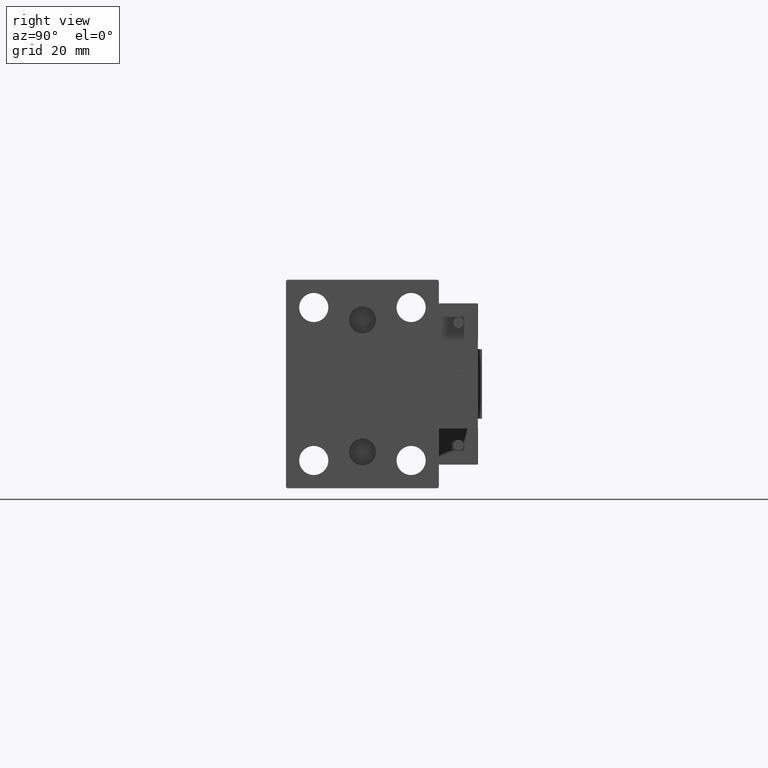
[diagram: clean part render]
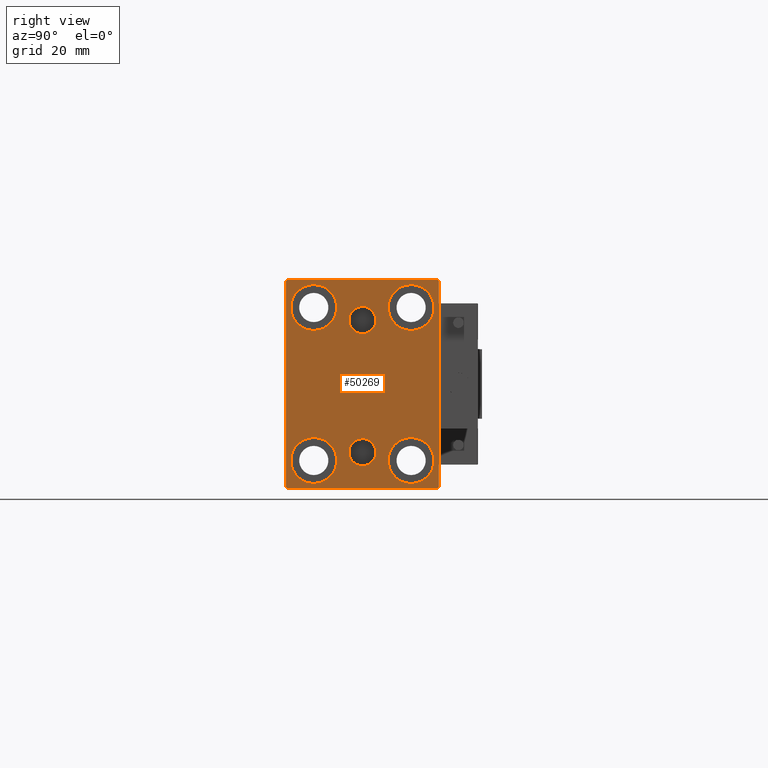
[diagram: same view with one face highlighted and labeled with its STEP entity id]
A machine part, right view. The second image highlights one B-rep face of the part: STEP entity #50269.
In plain terms, the highlighted planar face has unit normal (1, 0, 0).
Its self-contained STEP definition (entity closure, byte-faithful):
#143 = DIRECTION ( 'NONE',  ( 1.000000000000000000, 0.000000000000000000, 0.000000000000000000 ) ) ;
#337 = EDGE_CURVE ( 'NONE', #3570, #39332, #52429, .T. ) ;
#479 = EDGE_LOOP ( 'NONE', ( #51459, #25702, #19199, #50685, #47085, #43808, #20501, #22845 ) ) ;
#1545 = CIRCLE ( 'NONE', #8348, 4.859999999999999432 ) ;
#2521 = CARTESIAN_POINT ( 'NONE',  ( 115.0000000000000000, 32.24999999999981526, 32.25000000000025580 ) ) ;
#2774 = VERTEX_POINT ( 'NONE', #46201 ) ;
#3029 = CIRCLE ( 'NONE', #32802, 8.250000000000000000 ) ;
#3086 = CARTESIAN_POINT ( 'NONE',  ( 115.0000000000000000, -17.49999999999999645, 27.49999999999999645 ) ) ;
#3238 = ORIENTED_EDGE ( 'NONE', *, *, #17573, .T. ) ;
#3424 = VECTOR ( 'NONE', #13955, 1000.000000000000000 ) ;
#3570 = VERTEX_POINT ( 'NONE', #25672 ) ;
#3667 = EDGE_CURVE ( 'NONE', #32536, #51893, #18995, .T. ) ;
#4005 = CARTESIAN_POINT ( 'NONE',  ( 115.0000000000000000, 3.000384657911015074E-15, -24.49999999999999289 ) ) ;
#4092 = CARTESIAN_POINT ( 'NONE',  ( 115.0000000000000000, -3.571693674697836683E-15, 18.14000000000000767 ) ) ;
#4246 = VERTEX_POINT ( 'NONE', #17398 ) ;
#4317 = AXIS2_PLACEMENT_3D ( 'NONE', #32125, #20647, #4652 ) ;
#4515 = CARTESIAN_POINT ( 'NONE',  ( 115.0000000000000000, 3.000384657911015074E-15, -29.35999999999999233 ) ) ;
#4652 = DIRECTION ( 'NONE',  ( 0.000000000000000000, 0.000000000000000000, 1.000000000000000000 ) ) ;
#4723 = CARTESIAN_POINT ( 'NONE',  ( 115.0000000000000000, -17.50000000000000355, -27.50000000000000355 ) ) ;
#4854 = CARTESIAN_POINT ( 'NONE',  ( 115.0000000000000000, -32.25000000000038369, 32.24999999999949551 ) ) ;
#5295 = CARTESIAN_POINT ( 'NONE',  ( 115.0000000000000000, -17.49999999999999645, 27.49999999999999645 ) ) ;
#5571 = VECTOR ( 'NONE', #52169, 1000.000000000000000 ) ;
#5698 = CARTESIAN_POINT ( 'NONE',  ( 115.0000000000000000, -3.571693674697836683E-15, 23.00000000000000711 ) ) ;
#6522 = LINE ( 'NONE', #2521, #36887 ) ;
#6969 = VECTOR ( 'NONE', #34439, 1000.000000000000114 ) ;
#7470 = AXIS2_PLACEMENT_3D ( 'NONE', #4723, #44979, #20976 ) ;
#7614 = DIRECTION ( 'NONE',  ( 0.000000000000000000, 0.000000000000000000, -1.000000000000000000 ) ) ;
#7787 = DIRECTION ( 'NONE',  ( -1.000000000000000000, -0.000000000000000000, -0.000000000000000000 ) ) ;
#8205 = VERTEX_POINT ( 'NONE', #47172 ) ;
#8244 = DIRECTION ( 'NONE',  ( 0.000000000000000000, 0.000000000000000000, 1.000000000000000000 ) ) ;
#8348 = AXIS2_PLACEMENT_3D ( 'NONE', #43232, #11770, #27231 ) ;
#9048 = CIRCLE ( 'NONE', #37963, 8.249999999999992895 ) ;
#9100 = VERTEX_POINT ( 'NONE', #22664 ) ;
#9678 = CARTESIAN_POINT ( 'NONE',  ( 115.0000000000000000, 32.25000000000038369, -32.24999999999949551 ) ) ;
#10076 = CARTESIAN_POINT ( 'NONE',  ( 115.0000000000000000, 17.49999999999999645, -35.75000000000000711 ) ) ;
#10838 = EDGE_LOOP ( 'NONE', ( #24239, #32820 ) ) ;
#11474 = CIRCLE ( 'NONE', #46372, 8.250000000000000000 ) ;
#11477 = ORIENTED_EDGE ( 'NONE', *, *, #11555, .F. ) ;
#11555 = EDGE_CURVE ( 'NONE', #39890, #34088, #29112, .T. ) ;
#11622 = FACE_BOUND ( 'NONE', #12576, .T. ) ;
#11636 = CARTESIAN_POINT ( 'NONE',  ( 115.0000000000000000, 27.49999999999999645, 37.50000000000000711 ) ) ;
#11731 = VERTEX_POINT ( 'NONE', #27934 ) ;
#11770 = DIRECTION ( 'NONE',  ( 1.000000000000000000, 0.000000000000000000, 0.000000000000000000 ) ) ;
#12070 = VECTOR ( 'NONE', #41116, 1000.000000000000000 ) ;
#12121 = AXIS2_PLACEMENT_3D ( 'NONE', #4005, #20252, #32514 ) ;
#12326 = LINE ( 'NONE', #4854, #49904 ) ;
#12412 = CIRCLE ( 'NONE', #42212, 8.249999999999992895 ) ;
#12550 = EDGE_CURVE ( 'NONE', #20245, #12988, #50498, .T. ) ;
#12576 = EDGE_LOOP ( 'NONE', ( #44596, #43277 ) ) ;
#12988 = VERTEX_POINT ( 'NONE', #39968 ) ;
#13023 = CARTESIAN_POINT ( 'NONE',  ( 115.0000000000000000, -27.50000000000000355, 37.50000000000000000 ) ) ;
#13106 = DIRECTION ( 'NONE',  ( 0.000000000000000000, -0.7071067811865378028, -0.7071067811865573427 ) ) ;
#13507 = ORIENTED_EDGE ( 'NONE', *, *, #20962, .F. ) ;
#13955 = DIRECTION ( 'NONE',  ( -0.000000000000000000, 0.7071067811865378028, 0.7071067811865573427 ) ) ;
#14284 = CIRCLE ( 'NONE', #7470, 8.250000000000000000 ) ;
#14354 = CARTESIAN_POINT ( 'NONE',  ( 115.0000000000000000, 3.000384657911015074E-15, -24.49999999999999289 ) ) ;
#15753 = CIRCLE ( 'NONE', #26785, 4.859999999999999432 ) ;
#15870 = FACE_BOUND ( 'NONE', #31741, .T. ) ;
#17132 = LINE ( 'NONE', #29915, #12070 ) ;
#17398 = CARTESIAN_POINT ( 'NONE',  ( 115.0000000000000000, 27.49999999999999645, 37.00000000000001421 ) ) ;
#17402 = EDGE_LOOP ( 'NONE', ( #13507, #46964 ) ) ;
#17534 = CARTESIAN_POINT ( 'NONE',  ( 115.0000000000000000, -2.976515330312223406E-15, 27.86000000000000654 ) ) ;
#17573 = EDGE_CURVE ( 'NONE', #8205, #31195, #11474, .T. ) ;
#17832 = CIRCLE ( 'NONE', #29759, 8.249999999999992895 ) ;
#18809 = CARTESIAN_POINT ( 'NONE',  ( 115.0000000000000000, -17.49999999999999645, 19.25000000000000000 ) ) ;
#18912 = CARTESIAN_POINT ( 'NONE',  ( 115.0000000000000000, -27.00000000000000355, -37.50000000000000000 ) ) ;
#18995 = LINE ( 'NONE', #9678, #3424 ) ;
#19199 = ORIENTED_EDGE ( 'NONE', *, *, #40454, .T. ) ;
#19671 = VECTOR ( 'NONE', #21278, 1000.000000000000000 ) ;
#19869 = PLANE ( 'NONE',  #23440 ) ;
#20235 = CARTESIAN_POINT ( 'NONE',  ( 115.0000000000000000, 17.50000000000000355, 27.49999999999999645 ) ) ;
#20245 = VERTEX_POINT ( 'NONE', #10076 ) ;
#20252 = DIRECTION ( 'NONE',  ( 1.000000000000000000, 0.000000000000000000, -0.000000000000000000 ) ) ;
#20501 = ORIENTED_EDGE ( 'NONE', *, *, #41870, .T. ) ;
#20575 = EDGE_CURVE ( 'NONE', #39332, #32536, #43900, .T. ) ;
#20647 = DIRECTION ( 'NONE',  ( -1.000000000000000000, -0.000000000000000000, -0.000000000000000000 ) ) ;
#20962 = EDGE_CURVE ( 'NONE', #44570, #51787, #23409, .T. ) ;
#20976 = DIRECTION ( 'NONE',  ( 0.000000000000000000, 0.000000000000000000, 1.000000000000000000 ) ) ;
#21278 = DIRECTION ( 'NONE',  ( 0.000000000000000000, 0.000000000000000000, -1.000000000000000000 ) ) ;
#21916 = EDGE_CURVE ( 'NONE', #41916, #26218, #26128, .T. ) ;
#22664 = CARTESIAN_POINT ( 'NONE',  ( 115.0000000000000000, -17.49999999999999645, 35.74999999999999289 ) ) ;
#22679 = EDGE_CURVE ( 'NONE', #12988, #20245, #3029, .T. ) ;
#22845 = ORIENTED_EDGE ( 'NONE', *, *, #46358, .T. ) ;
#23409 = CIRCLE ( 'NONE', #42960, 4.859999999999999432 ) ;
#23440 = AXIS2_PLACEMENT_3D ( 'NONE', #44135, #143, #7614 ) ;
#23647 = CARTESIAN_POINT ( 'NONE',  ( 115.0000000000000000, -27.50000000000000355, -37.50000000000000000 ) ) ;
#23792 = EDGE_CURVE ( 'NONE', #47822, #2774, #12412, .T. ) ;
#23836 = CARTESIAN_POINT ( 'NONE',  ( 115.0000000000000000, 27.00000000000001776, -37.50000000000000000 ) ) ;
#23911 = EDGE_LOOP ( 'NONE', ( #3238, #41486 ) ) ;
#24212 = EDGE_CURVE ( 'NONE', #9100, #27567, #9048, .T. ) ;
#24239 = ORIENTED_EDGE ( 'NONE', *, *, #33171, .T. ) ;
#24504 = EDGE_CURVE ( 'NONE', #26218, #11731, #12326, .T. ) ;
#25672 = CARTESIAN_POINT ( 'NONE',  ( 115.0000000000000000, -27.50000000000000355, -37.00000000000000000 ) ) ;
#25702 = ORIENTED_EDGE ( 'NONE', *, *, #24504, .T. ) ;
#26128 = LINE ( 'NONE', #11636, #5571 ) ;
#26179 = CARTESIAN_POINT ( 'NONE',  ( 115.0000000000000000, 17.49999999999999645, -27.50000000000000355 ) ) ;
#26218 = VERTEX_POINT ( 'NONE', #51637 ) ;
#26785 = AXIS2_PLACEMENT_3D ( 'NONE', #14354, #43649, #31129 ) ;
#27231 = DIRECTION ( 'NONE',  ( 0.000000000000000000, 0.000000000000000000, -1.000000000000000000 ) ) ;
#27279 = CIRCLE ( 'NONE', #4317, 8.249999999999992895 ) ;
#27484 = EDGE_CURVE ( 'NONE', #31195, #8205, #14284, .T. ) ;
#27485 = AXIS2_PLACEMENT_3D ( 'NONE', #26179, #30684, #39467 ) ;
#27567 = VERTEX_POINT ( 'NONE', #18809 ) ;
#27628 = VECTOR ( 'NONE', #38255, 1000.000000000000000 ) ;
#27629 = CARTESIAN_POINT ( 'NONE',  ( 115.0000000000000000, -17.50000000000000355, -27.50000000000000355 ) ) ;
#27877 = FACE_OUTER_BOUND ( 'NONE', #479, .T. ) ;
#27934 = CARTESIAN_POINT ( 'NONE',  ( 115.0000000000000000, -27.50000000000000355, 37.00000000000000000 ) ) ;
#27976 = DIRECTION ( 'NONE',  ( 1.000000000000000000, 0.000000000000000000, 0.000000000000000000 ) ) ;
#29112 = CIRCLE ( 'NONE', #12121, 4.859999999999999432 ) ;
#29759 = AXIS2_PLACEMENT_3D ( 'NONE', #5295, #7787, #40294 ) ;
#29915 = CARTESIAN_POINT ( 'NONE',  ( 115.0000000000000000, 27.50000000000000355, -37.50000000000000000 ) ) ;
#30048 = EDGE_CURVE ( 'NONE', #51787, #44570, #1545, .T. ) ;
#30475 = EDGE_LOOP ( 'NONE', ( #41622, #42559 ) ) ;
#30684 = DIRECTION ( 'NONE',  ( -1.000000000000000000, -0.000000000000000000, -0.000000000000000000 ) ) ;
#30845 = DIRECTION ( 'NONE',  ( -1.000000000000000000, -0.000000000000000000, -0.000000000000000000 ) ) ;
#31129 = DIRECTION ( 'NONE',  ( 0.000000000000000000, 0.000000000000000000, 1.000000000000000000 ) ) ;
#31195 = VERTEX_POINT ( 'NONE', #33176 ) ;
#31741 = EDGE_LOOP ( 'NONE', ( #38492, #11477 ) ) ;
#32125 = CARTESIAN_POINT ( 'NONE',  ( 115.0000000000000000, 17.50000000000000355, 27.49999999999999645 ) ) ;
#32133 = FACE_BOUND ( 'NONE', #10838, .T. ) ;
#32514 = DIRECTION ( 'NONE',  ( 0.000000000000000000, 0.000000000000000000, 1.000000000000000000 ) ) ;
#32536 = VERTEX_POINT ( 'NONE', #23836 ) ;
#32802 = AXIS2_PLACEMENT_3D ( 'NONE', #43238, #36015, #47514 ) ;
#32820 = ORIENTED_EDGE ( 'NONE', *, *, #24212, .T. ) ;
#33171 = EDGE_CURVE ( 'NONE', #27567, #9100, #17832, .T. ) ;
#33176 = CARTESIAN_POINT ( 'NONE',  ( 115.0000000000000000, -17.50000000000000355, -19.25000000000000355 ) ) ;
#34088 = VERTEX_POINT ( 'NONE', #4515 ) ;
#34439 = DIRECTION ( 'NONE',  ( -0.000000000000000000, 0.7071067811865474617, -0.7071067811865474617 ) ) ;
#35550 = EDGE_CURVE ( 'NONE', #2774, #47822, #27279, .T. ) ;
#35571 = DIRECTION ( 'NONE',  ( -1.000000000000000000, -0.000000000000000000, -0.000000000000000000 ) ) ;
#35965 = DIRECTION ( 'NONE',  ( 0.000000000000000000, 0.000000000000000000, -1.000000000000000000 ) ) ;
#36015 = DIRECTION ( 'NONE',  ( -1.000000000000000000, -0.000000000000000000, -0.000000000000000000 ) ) ;
#36476 = DIRECTION ( 'NONE',  ( -1.000000000000000000, -0.000000000000000000, -0.000000000000000000 ) ) ;
#36887 = VECTOR ( 'NONE', #51586, 1000.000000000000000 ) ;
#37161 = FACE_BOUND ( 'NONE', #17402, .T. ) ;
#37963 = AXIS2_PLACEMENT_3D ( 'NONE', #3086, #35571, #38784 ) ;
#38174 = CARTESIAN_POINT ( 'NONE',  ( 115.0000000000000000, -32.25000000000000000, -32.25000000000000000 ) ) ;
#38255 = DIRECTION ( 'NONE',  ( 0.000000000000000000, 1.000000000000000000, 0.000000000000000000 ) ) ;
#38492 = ORIENTED_EDGE ( 'NONE', *, *, #48962, .F. ) ;
#38784 = DIRECTION ( 'NONE',  ( 0.000000000000000000, 0.000000000000000000, 1.000000000000000000 ) ) ;
#39332 = VERTEX_POINT ( 'NONE', #18912 ) ;
#39467 = DIRECTION ( 'NONE',  ( 0.000000000000000000, 0.000000000000000000, 1.000000000000000000 ) ) ;
#39890 = VERTEX_POINT ( 'NONE', #41128 ) ;
#39968 = CARTESIAN_POINT ( 'NONE',  ( 115.0000000000000000, 17.49999999999999645, -19.25000000000000355 ) ) ;
#40294 = DIRECTION ( 'NONE',  ( 0.000000000000000000, 0.000000000000000000, 1.000000000000000000 ) ) ;
#40454 = EDGE_CURVE ( 'NONE', #11731, #3570, #41002, .T. ) ;
#41002 = LINE ( 'NONE', #13023, #19671 ) ;
#41116 = DIRECTION ( 'NONE',  ( 0.000000000000000000, -9.251858538542970348E-17, 1.000000000000000000 ) ) ;
#41128 = CARTESIAN_POINT ( 'NONE',  ( 115.0000000000000000, 3.595563002296627957E-15, -19.63999999999999346 ) ) ;
#41486 = ORIENTED_EDGE ( 'NONE', *, *, #27484, .T. ) ;
#41622 = ORIENTED_EDGE ( 'NONE', *, *, #12550, .T. ) ;
#41870 = EDGE_CURVE ( 'NONE', #51893, #4246, #17132, .T. ) ;
#41916 = VERTEX_POINT ( 'NONE', #45659 ) ;
#42212 = AXIS2_PLACEMENT_3D ( 'NONE', #20235, #36476, #8244 ) ;
#42559 = ORIENTED_EDGE ( 'NONE', *, *, #22679, .T. ) ;
#42960 = AXIS2_PLACEMENT_3D ( 'NONE', #5698, #27976, #35965 ) ;
#43232 = CARTESIAN_POINT ( 'NONE',  ( 115.0000000000000000, -3.571693674697836683E-15, 23.00000000000000711 ) ) ;
#43238 = CARTESIAN_POINT ( 'NONE',  ( 115.0000000000000000, 17.49999999999999645, -27.50000000000000355 ) ) ;
#43277 = ORIENTED_EDGE ( 'NONE', *, *, #23792, .T. ) ;
#43363 = DIRECTION ( 'NONE',  ( 0.000000000000000000, 0.000000000000000000, 1.000000000000000000 ) ) ;
#43649 = DIRECTION ( 'NONE',  ( 1.000000000000000000, 0.000000000000000000, -0.000000000000000000 ) ) ;
#43808 = ORIENTED_EDGE ( 'NONE', *, *, #3667, .T. ) ;
#43900 = LINE ( 'NONE', #23647, #27628 ) ;
#44135 = CARTESIAN_POINT ( 'NONE',  ( 115.0000000000000000, 0.000000000000000000, 0.000000000000000000 ) ) ;
#44155 = CARTESIAN_POINT ( 'NONE',  ( 115.0000000000000000, 27.50000000000000355, -37.00000000000000000 ) ) ;
#44570 = VERTEX_POINT ( 'NONE', #4092 ) ;
#44596 = ORIENTED_EDGE ( 'NONE', *, *, #35550, .T. ) ;
#44979 = DIRECTION ( 'NONE',  ( -1.000000000000000000, -0.000000000000000000, -0.000000000000000000 ) ) ;
#45172 = FACE_BOUND ( 'NONE', #23911, .T. ) ;
#45533 = CARTESIAN_POINT ( 'NONE',  ( 115.0000000000000000, 17.50000000000000355, 35.74999999999999289 ) ) ;
#45659 = CARTESIAN_POINT ( 'NONE',  ( 115.0000000000000000, 26.99999999999999645, 37.50000000000000711 ) ) ;
#46201 = CARTESIAN_POINT ( 'NONE',  ( 115.0000000000000000, 17.50000000000000355, 19.25000000000000000 ) ) ;
#46358 = EDGE_CURVE ( 'NONE', #4246, #41916, #6522, .T. ) ;
#46372 = AXIS2_PLACEMENT_3D ( 'NONE', #27629, #30845, #43363 ) ;
#46964 = ORIENTED_EDGE ( 'NONE', *, *, #30048, .F. ) ;
#47085 = ORIENTED_EDGE ( 'NONE', *, *, #20575, .T. ) ;
#47172 = CARTESIAN_POINT ( 'NONE',  ( 115.0000000000000000, -17.50000000000000355, -35.75000000000000711 ) ) ;
#47514 = DIRECTION ( 'NONE',  ( 0.000000000000000000, 0.000000000000000000, 1.000000000000000000 ) ) ;
#47822 = VERTEX_POINT ( 'NONE', #45533 ) ;
#48962 = EDGE_CURVE ( 'NONE', #34088, #39890, #15753, .T. ) ;
#49904 = VECTOR ( 'NONE', #13106, 1000.000000000000000 ) ;
#50269 = ADVANCED_FACE ( 'NONE', ( #37161, #15870, #52675, #32133, #11622, #45172, #27877 ), #19869, .T. ) ;
#50498 = CIRCLE ( 'NONE', #27485, 8.250000000000000000 ) ;
#50685 = ORIENTED_EDGE ( 'NONE', *, *, #337, .T. ) ;
#51459 = ORIENTED_EDGE ( 'NONE', *, *, #21916, .T. ) ;
#51586 = DIRECTION ( 'NONE',  ( -0.000000000000000000, -0.7071067811865524577, 0.7071067811865426878 ) ) ;
#51637 = CARTESIAN_POINT ( 'NONE',  ( 115.0000000000000000, -27.00000000000001776, 37.50000000000000000 ) ) ;
#51787 = VERTEX_POINT ( 'NONE', #17534 ) ;
#51893 = VERTEX_POINT ( 'NONE', #44155 ) ;
#52169 = DIRECTION ( 'NONE',  ( 0.000000000000000000, -1.000000000000000000, -1.261617073437677999E-16 ) ) ;
#52429 = LINE ( 'NONE', #38174, #6969 ) ;
#52675 = FACE_BOUND ( 'NONE', #30475, .T. ) ;